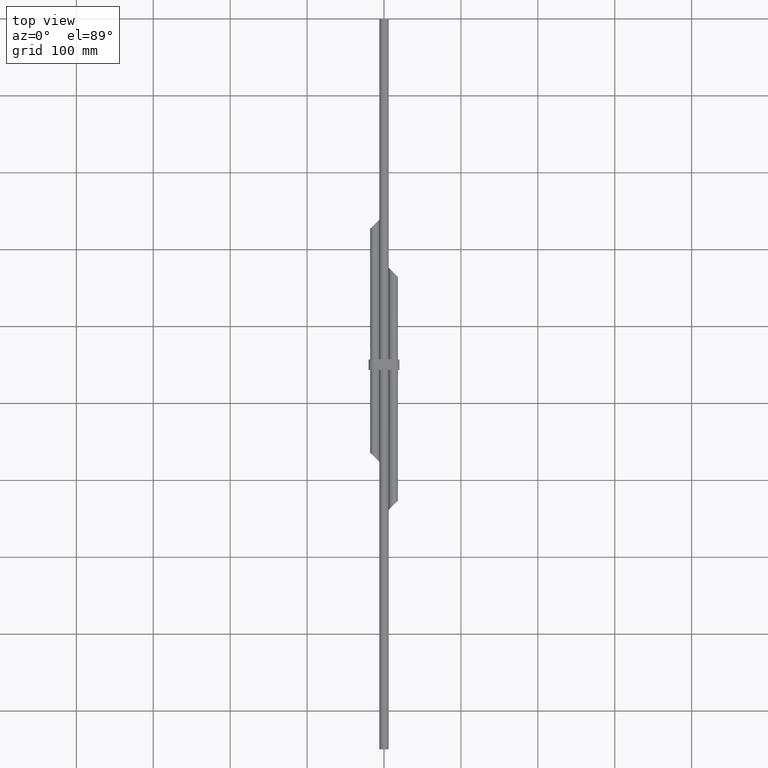
[diagram: clean part render]
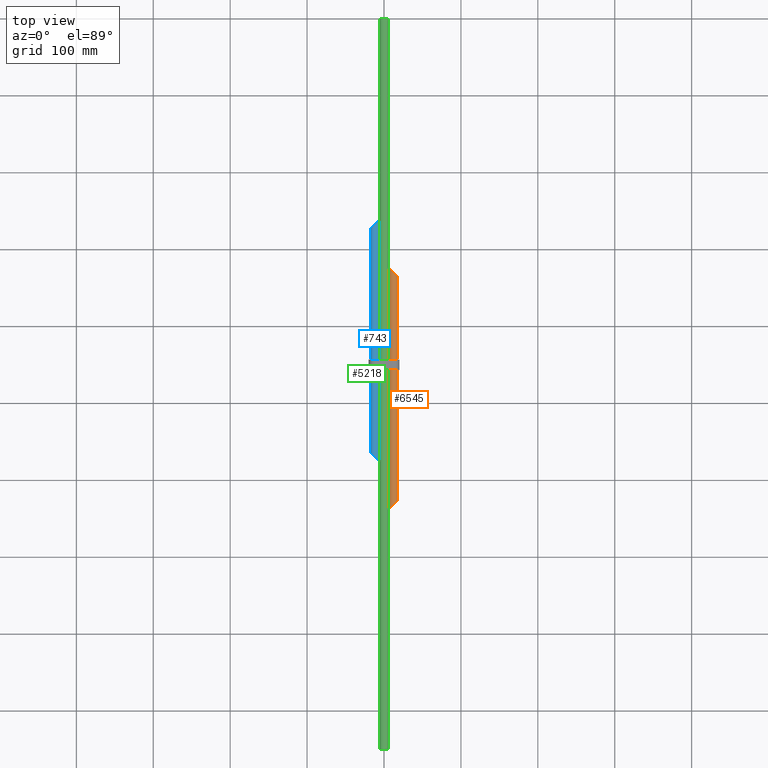
[diagram: same view with three faces highlighted in distinct colors, each labeled with its STEP entity id]
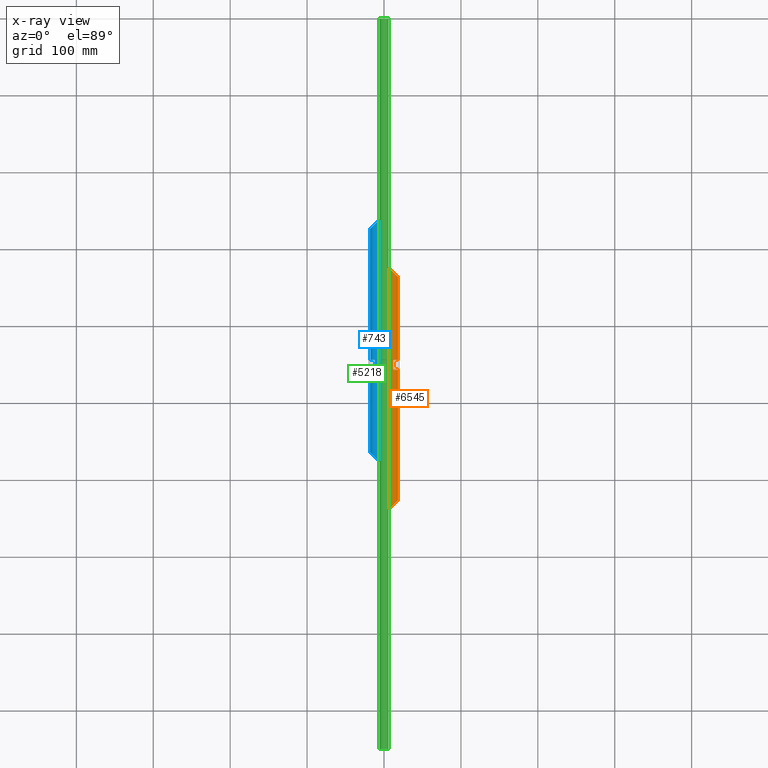
[diagram: x-ray of the same camera — body ghosted, the three highlighted faces saturated]
A machine part, top view with three faces highlighted in distinct colors.
The next image is the same camera in x-ray (body ghosted, the three faces saturated) — at least one of them is partly hidden behind the body in this view.
Their STEP definitions:

[orange] entity #6545 — the highlighted cylindrical surface (bore or boss wall) has radius 6 mm, axis along (-0, 1, -0).
#167 = ORIENTED_EDGE ( 'NONE', *, *, #13166, .T. ) ;
#826 = ORIENTED_EDGE ( 'NONE', *, *, #4181, .T. ) ;
#834 = VECTOR ( 'NONE', #4927, 1000.000000000000000 ) ;
#883 = ORIENTED_EDGE ( 'NONE', *, *, #9269, .F. ) ;
#1122 = CARTESIAN_POINT ( 'NONE',  ( 5.999999999999995559, -323.7500000000000568, 0.000000000000000000 ) ) ;
#1221 = AXIS2_PLACEMENT_3D ( 'NONE', #2932, #3956, #9436 ) ;
#1389 = DIRECTION ( 'NONE',  ( 0.000000000000000000, 1.000000000000000000, 0.000000000000000000 ) ) ;
#1483 = FACE_OUTER_BOUND ( 'NONE', #1789, .T. ) ;
#1734 = AXIS2_PLACEMENT_3D ( 'NONE', #11866, #4299, #7563 ) ;
#1789 = EDGE_LOOP ( 'NONE', ( #8839 ) ) ;
#1949 = AXIS2_PLACEMENT_3D ( 'NONE', #10737, #1389, #8793 ) ;
#2273 = VERTEX_POINT ( 'NONE', #13528 ) ;
#2278 = CARTESIAN_POINT ( 'NONE',  ( 5.999999999999995559, -638.7500000000000000, -7.347880794884122694E-16 ) ) ;
#2593 = EDGE_CURVE ( 'NONE', #4360, #11549, #10603, .T. ) ;
#2932 = CARTESIAN_POINT ( 'NONE',  ( 12.00000000000000000, -638.7500000000000000, 0.000000000000000000 ) ) ;
#3070 = VERTEX_POINT ( 'NONE', #10441 ) ;
#3158 = CARTESIAN_POINT ( 'NONE',  ( 5.999999999999993783, -638.7500000000000000, 12.00000000000000355 ) ) ;
#3192 = LINE ( 'NONE', #4068, #11327 ) ;
#3246 = CARTESIAN_POINT ( 'NONE',  ( 18.00000000000000711, -626.7500000000000000, -12.00000000000000355 ) ) ;
#3598 = VERTEX_POINT ( 'NONE', #12581 ) ;
#3655 = LINE ( 'NONE', #8136, #834 ) ;
#3956 = DIRECTION ( 'NONE',  ( -0.000000000000000000, 1.000000000000000000, -0.000000000000000000 ) ) ;
#4068 = CARTESIAN_POINT ( 'NONE',  ( 12.00000000000000000, -450.0000000000000000, -6.000000000000002665 ) ) ;
#4181 = EDGE_CURVE ( 'NONE', #4360, #11833, #3655, .T. ) ;
#4299 = DIRECTION ( 'NONE',  ( 0.000000000000000000, 1.000000000000000000, 0.000000000000000000 ) ) ;
#4360 = VERTEX_POINT ( 'NONE', #11387 ) ;
#4927 = DIRECTION ( 'NONE',  ( -0.000000000000000000, 1.000000000000000000, -0.000000000000000000 ) ) ;
#5428 = CARTESIAN_POINT ( 'NONE',  ( 18.00000000000000711, -626.7500000000000000, 0.000000000000000000 ) ) ;
#5452 = DIRECTION ( 'NONE',  ( -0.000000000000000000, 1.000000000000000000, -0.000000000000000000 ) ) ;
#5461 = CYLINDRICAL_SURFACE ( 'NONE', #1221, 6.000000000000002665 ) ;
#6224 = EDGE_CURVE ( 'NONE', #11833, #3070, #6793, .T. ) ;
#6454 = CARTESIAN_POINT ( 'NONE',  ( 18.00000000000000711, -626.7500000000000000, 0.000000000000000000 ) ) ;
#6508 = CARTESIAN_POINT ( 'NONE',  ( 5.999999999999995559, -323.7500000000000568, 0.000000000000000000 ) ) ;
#6545 = ADVANCED_FACE ( 'NONE', ( #1483, #9107, #12918 ), #5461, .T. ) ;
#6553 = CARTESIAN_POINT ( 'NONE',  ( 5.999999999999995559, -323.7500000000000568, 12.00000000000000355 ) ) ;
#6793 = CIRCLE ( 'NONE', #1949, 6.000000000000001776 ) ;
#7059 =( BOUNDED_CURVE ( )  B_SPLINE_CURVE ( 3, ( #6454, #3246, #7412, #2278, #3158, #9703, #5428 ),
 .UNSPECIFIED., .T., .F. ) 
 B_SPLINE_CURVE_WITH_KNOTS ( ( 4, 3, 4 ),
 ( 0.000000000000000000, 3.141592653589793116, 6.283185307179586232 ),
 .UNSPECIFIED. ) 
 CURVE ( )  GEOMETRIC_REPRESENTATION_ITEM ( )  RATIONAL_B_SPLINE_CURVE ( ( 1.000000000000000000, 0.3333333333333333703, 0.3333333333333333703, 1.000000000000000000, 0.3333333333333333703, 0.3333333333333333703, 1.000000000000000000 ) ) 
 REPRESENTATION_ITEM ( '' )  );
#7412 = CARTESIAN_POINT ( 'NONE',  ( 5.999999999999998224, -638.7500000000000000, -12.00000000000000355 ) ) ;
#7454 = CARTESIAN_POINT ( 'NONE',  ( 18.00000000000000711, -335.7500000000000568, 12.00000000000000355 ) ) ;
#7563 = DIRECTION ( 'NONE',  ( 0.000000000000000000, 0.000000000000000000, 1.000000000000000000 ) ) ;
#8136 = CARTESIAN_POINT ( 'NONE',  ( 12.00000000000000000, -450.0000000000000000, 6.000000000000000888 ) ) ;
#8793 = DIRECTION ( 'NONE',  ( 0.000000000000000000, 0.000000000000000000, 1.000000000000000000 ) ) ;
#8839 = ORIENTED_EDGE ( 'NONE', *, *, #10306, .T. ) ;
#9107 = FACE_OUTER_BOUND ( 'NONE', #10078, .T. ) ;
#9269 = EDGE_CURVE ( 'NONE', #11549, #3070, #3192, .T. ) ;
#9436 = DIRECTION ( 'NONE',  ( 0.000000000000000000, 0.000000000000000000, 1.000000000000000000 ) ) ;
#9703 = CARTESIAN_POINT ( 'NONE',  ( 18.00000000000000711, -626.7500000000000000, 12.00000000000000355 ) ) ;
#10078 = EDGE_LOOP ( 'NONE', ( #167 ) ) ;
#10306 = EDGE_CURVE ( 'NONE', #3598, #3598, #7059, .T. ) ;
#10357 = EDGE_LOOP ( 'NONE', ( #13508, #883, #13173, #826 ) ) ;
#10441 = CARTESIAN_POINT ( 'NONE',  ( 12.00000000000000000, -443.2500000000000568, -6.000000000000002665 ) ) ;
#10585 = CARTESIAN_POINT ( 'NONE',  ( 18.00000000000000711, -335.7500000000000568, -12.00000000000000355 ) ) ;
#10603 = CIRCLE ( 'NONE', #1734, 6.000000000000001776 ) ;
#10674 = CARTESIAN_POINT ( 'NONE',  ( 5.999999999999995559, -323.7500000000000568, -12.00000000000000355 ) ) ;
#10737 = CARTESIAN_POINT ( 'NONE',  ( 12.00000000000000000, -443.2500000000000568, 0.000000000000000000 ) ) ;
#10940 =( BOUNDED_CURVE ( )  B_SPLINE_CURVE ( 3, ( #1122, #10674, #10585, #11755, #7454, #6553, #6508 ),
 .UNSPECIFIED., .T., .F. ) 
 B_SPLINE_CURVE_WITH_KNOTS ( ( 4, 3, 4 ),
 ( 0.000000000000000000, 3.141592653589793116, 6.283185307179586232 ),
 .UNSPECIFIED. ) 
 CURVE ( )  GEOMETRIC_REPRESENTATION_ITEM ( )  RATIONAL_B_SPLINE_CURVE ( ( 1.000000000000000000, 0.3333333333333333703, 0.3333333333333333703, 1.000000000000000000, 0.3333333333333333703, 0.3333333333333333703, 1.000000000000000000 ) ) 
 REPRESENTATION_ITEM ( '' )  );
#11327 = VECTOR ( 'NONE', #5452, 1000.000000000000000 ) ;
#11387 = CARTESIAN_POINT ( 'NONE',  ( 12.00000000000000000, -456.7500000000000000, 6.000000000000000888 ) ) ;
#11549 = VERTEX_POINT ( 'NONE', #13537 ) ;
#11755 = CARTESIAN_POINT ( 'NONE',  ( 18.00000000000000711, -335.7500000000000568, -7.347880794884122694E-16 ) ) ;
#11833 = VERTEX_POINT ( 'NONE', #12856 ) ;
#11866 = CARTESIAN_POINT ( 'NONE',  ( 12.00000000000000000, -456.7500000000000000, 0.000000000000000000 ) ) ;
#12581 = CARTESIAN_POINT ( 'NONE',  ( 18.00000000000000711, -626.7500000000000000, 0.000000000000000000 ) ) ;
#12856 = CARTESIAN_POINT ( 'NONE',  ( 12.00000000000000000, -443.2500000000000568, 6.000000000000001776 ) ) ;
#12918 = FACE_BOUND ( 'NONE', #10357, .T. ) ;
#13166 = EDGE_CURVE ( 'NONE', #2273, #2273, #10940, .T. ) ;
#13173 = ORIENTED_EDGE ( 'NONE', *, *, #2593, .F. ) ;
#13508 = ORIENTED_EDGE ( 'NONE', *, *, #6224, .T. ) ;
#13528 = CARTESIAN_POINT ( 'NONE',  ( 5.999999999999995559, -323.7500000000000568, 0.000000000000000000 ) ) ;
#13537 = CARTESIAN_POINT ( 'NONE',  ( 12.00000000000000000, -456.7500000000000000, -6.000000000000001776 ) ) ;

[blue] entity #743 — the highlighted cylindrical surface (bore or boss wall) has radius 6 mm, axis along (-0, 1, -0).
#30 = CARTESIAN_POINT ( 'NONE',  ( -12.00000000000000000, -443.2500000000000568, 6.000000000000000888 ) ) ;
#268 = VERTEX_POINT ( 'NONE', #9240 ) ;
#519 = DIRECTION ( 'NONE',  ( -0.000000000000000000, 1.000000000000000000, -0.000000000000000000 ) ) ;
#743 = ADVANCED_FACE ( 'NONE', ( #9638, #1847, #11800 ), #8799, .T. ) ;
#829 =( BOUNDED_CURVE ( )  B_SPLINE_CURVE ( 3, ( #6157, #11586, #13745, #12654, #10464, #7390, #10519 ),
 .UNSPECIFIED., .T., .T. ) 
 B_SPLINE_CURVE_WITH_KNOTS ( ( 4, 3, 4 ),
 ( 0.000000000000000000, 3.141592653589793116, 6.283185307179586232 ),
 .UNSPECIFIED. ) 
 CURVE ( )  GEOMETRIC_REPRESENTATION_ITEM ( )  RATIONAL_B_SPLINE_CURVE ( ( 1.000000000000000000, 0.3333333333333333703, 0.3333333333333333703, 1.000000000000000000, 0.3333333333333333703, 0.3333333333333333703, 1.000000000000000000 ) ) 
 REPRESENTATION_ITEM ( '' )  );
#1103 = ORIENTED_EDGE ( 'NONE', *, *, #1729, .F. ) ;
#1514 = ORIENTED_EDGE ( 'NONE', *, *, #4558, .F. ) ;
#1640 = CARTESIAN_POINT ( 'NONE',  ( -18.00000000000000000, -273.2500000000000568, -12.00000000000000178 ) ) ;
#1729 = EDGE_CURVE ( 'NONE', #2446, #12722, #10613, .T. ) ;
#1847 = FACE_OUTER_BOUND ( 'NONE', #4980, .T. ) ;
#2263 = AXIS2_PLACEMENT_3D ( 'NONE', #4930, #10368, #5080 ) ;
#2379 = CARTESIAN_POINT ( 'NONE',  ( -12.00000000000000000, -456.7500000000000000, 0.000000000000000000 ) ) ;
#2446 = VERTEX_POINT ( 'NONE', #7058 ) ;
#2712 = CARTESIAN_POINT ( 'NONE',  ( -5.999999999999998224, -261.2500000000000568, -12.00000000000000178 ) ) ;
#3071 = CARTESIAN_POINT ( 'NONE',  ( -5.999999999999998224, -261.2500000000000568, 0.000000000000000000 ) ) ;
#4408 = VERTEX_POINT ( 'NONE', #12438 ) ;
#4409 = DIRECTION ( 'NONE',  ( 0.000000000000000000, 0.000000000000000000, 1.000000000000000000 ) ) ;
#4558 = EDGE_CURVE ( 'NONE', #4408, #2446, #9491, .T. ) ;
#4767 = VECTOR ( 'NONE', #519, 1000.000000000000000 ) ;
#4787 = CARTESIAN_POINT ( 'NONE',  ( -5.999999999999998224, -261.2500000000000568, 0.000000000000000000 ) ) ;
#4920 = CARTESIAN_POINT ( 'NONE',  ( -18.00000000000000355, -273.2500000000000568, 7.347880794884120722E-16 ) ) ;
#4930 = CARTESIAN_POINT ( 'NONE',  ( -12.00000000000000000, -576.2500000000000000, 0.000000000000000000 ) ) ;
#4980 = EDGE_LOOP ( 'NONE', ( #7413 ) ) ;
#5080 = DIRECTION ( 'NONE',  ( 0.000000000000000000, 0.000000000000000000, 1.000000000000000000 ) ) ;
#5190 =( BOUNDED_CURVE ( )  B_SPLINE_CURVE ( 3, ( #9044, #11343, #8130, #4920, #1640, #2712, #4787 ),
 .UNSPECIFIED., .T., .F. ) 
 B_SPLINE_CURVE_WITH_KNOTS ( ( 4, 3, 4 ),
 ( 0.000000000000000000, 3.141592653589793116, 6.283185307179586232 ),
 .UNSPECIFIED. ) 
 CURVE ( )  GEOMETRIC_REPRESENTATION_ITEM ( )  RATIONAL_B_SPLINE_CURVE ( ( 1.000000000000000000, 0.3333333333333333703, 0.3333333333333333703, 1.000000000000000000, 0.3333333333333333703, 0.3333333333333333703, 1.000000000000000000 ) ) 
 REPRESENTATION_ITEM ( '' )  );
#5926 = DIRECTION ( 'NONE',  ( 0.000000000000000000, 0.000000000000000000, 1.000000000000000000 ) ) ;
#6157 = CARTESIAN_POINT ( 'NONE',  ( -18.00000000000000355, -564.2500000000000000, 0.000000000000000000 ) ) ;
#6371 = EDGE_LOOP ( 'NONE', ( #10967, #10301, #1103, #1514 ) ) ;
#6611 = EDGE_LOOP ( 'NONE', ( #8461 ) ) ;
#6766 = LINE ( 'NONE', #10168, #4767 ) ;
#7048 = VERTEX_POINT ( 'NONE', #10704 ) ;
#7058 = CARTESIAN_POINT ( 'NONE',  ( -12.00000000000000178, -456.7500000000000000, 6.000000000000001776 ) ) ;
#7390 = CARTESIAN_POINT ( 'NONE',  ( -18.00000000000000000, -564.2499999999998863, -12.00000000000000178 ) ) ;
#7413 = ORIENTED_EDGE ( 'NONE', *, *, #9117, .T. ) ;
#8029 = EDGE_CURVE ( 'NONE', #10715, #10715, #5190, .T. ) ;
#8130 = CARTESIAN_POINT ( 'NONE',  ( -18.00000000000000000, -273.2500000000000568, 12.00000000000000178 ) ) ;
#8461 = ORIENTED_EDGE ( 'NONE', *, *, #8029, .T. ) ;
#8799 = CYLINDRICAL_SURFACE ( 'NONE', #2263, 6.000000000000000888 ) ;
#9044 = CARTESIAN_POINT ( 'NONE',  ( -5.999999999999998224, -261.2500000000000568, 0.000000000000000000 ) ) ;
#9117 = EDGE_CURVE ( 'NONE', #268, #268, #829, .T. ) ;
#9240 = CARTESIAN_POINT ( 'NONE',  ( -18.00000000000000355, -564.2500000000000000, 0.000000000000000000 ) ) ;
#9491 = CIRCLE ( 'NONE', #12049, 6.000000000000001776 ) ;
#9638 = FACE_OUTER_BOUND ( 'NONE', #6611, .T. ) ;
#10168 = CARTESIAN_POINT ( 'NONE',  ( -12.00000000000000000, -450.0000000000000000, -6.000000000000002665 ) ) ;
#10213 = AXIS2_PLACEMENT_3D ( 'NONE', #13410, #13512, #5926 ) ;
#10301 = ORIENTED_EDGE ( 'NONE', *, *, #10555, .T. ) ;
#10368 = DIRECTION ( 'NONE',  ( -0.000000000000000000, 1.000000000000000000, -0.000000000000000000 ) ) ;
#10464 = CARTESIAN_POINT ( 'NONE',  ( -5.999999999999996447, -576.2499999999998863, -12.00000000000000178 ) ) ;
#10519 = CARTESIAN_POINT ( 'NONE',  ( -18.00000000000000355, -564.2500000000000000, 0.000000000000000000 ) ) ;
#10555 = EDGE_CURVE ( 'NONE', #7048, #12722, #10950, .T. ) ;
#10613 = LINE ( 'NONE', #11124, #13761 ) ;
#10704 = CARTESIAN_POINT ( 'NONE',  ( -12.00000000000000000, -443.2500000000000568, -6.000000000000001776 ) ) ;
#10715 = VERTEX_POINT ( 'NONE', #3071 ) ;
#10950 = CIRCLE ( 'NONE', #10213, 6.000000000000001776 ) ;
#10967 = ORIENTED_EDGE ( 'NONE', *, *, #13686, .T. ) ;
#10992 = DIRECTION ( 'NONE',  ( -0.000000000000000000, 1.000000000000000000, -0.000000000000000000 ) ) ;
#11124 = CARTESIAN_POINT ( 'NONE',  ( -12.00000000000000000, -450.0000000000000000, 6.000000000000001776 ) ) ;
#11343 = CARTESIAN_POINT ( 'NONE',  ( -5.999999999999998224, -261.2500000000000568, 12.00000000000000178 ) ) ;
#11586 = CARTESIAN_POINT ( 'NONE',  ( -18.00000000000000000, -564.2499999999998863, 12.00000000000000178 ) ) ;
#11800 = FACE_BOUND ( 'NONE', #6371, .T. ) ;
#11884 = DIRECTION ( 'NONE',  ( 0.000000000000000000, 1.000000000000000000, 0.000000000000000000 ) ) ;
#12049 = AXIS2_PLACEMENT_3D ( 'NONE', #2379, #11884, #4409 ) ;
#12438 = CARTESIAN_POINT ( 'NONE',  ( -12.00000000000000000, -456.7500000000000000, -6.000000000000000888 ) ) ;
#12654 = CARTESIAN_POINT ( 'NONE',  ( -5.999999999999998224, -576.2500000000000000, 7.347880794884120722E-16 ) ) ;
#12722 = VERTEX_POINT ( 'NONE', #30 ) ;
#13410 = CARTESIAN_POINT ( 'NONE',  ( -12.00000000000000000, -443.2500000000000568, 0.000000000000000000 ) ) ;
#13512 = DIRECTION ( 'NONE',  ( 0.000000000000000000, 1.000000000000000000, 0.000000000000000000 ) ) ;
#13686 = EDGE_CURVE ( 'NONE', #4408, #7048, #6766, .T. ) ;
#13745 = CARTESIAN_POINT ( 'NONE',  ( -6.000000000000000888, -576.2499999999998863, 12.00000000000000178 ) ) ;
#13761 = VECTOR ( 'NONE', #10992, 1000.000000000000000 ) ;

[green] entity #5218 — the highlighted cylindrical surface (bore or boss wall) has radius 6 mm, axis along (0, 1, 0).
#31 = EDGE_LOOP ( 'NONE', ( #4264 ) ) ;
#1516 = CYLINDRICAL_SURFACE ( 'NONE', #6092, 6.000000000000000888 ) ;
#1882 = CARTESIAN_POINT ( 'NONE',  ( 0.000000000000000000, -950.0000000000000000, 6.000000000000000888 ) ) ;
#2059 = DIRECTION ( 'NONE',  ( 0.000000000000000000, 0.000000000000000000, 1.000000000000000000 ) ) ;
#2191 = DIRECTION ( 'NONE',  ( 0.000000000000000000, 1.000000000000000000, 0.000000000000000000 ) ) ;
#3240 = DIRECTION ( 'NONE',  ( 0.000000000000000000, 0.000000000000000000, 1.000000000000000000 ) ) ;
#3694 = EDGE_LOOP ( 'NONE', ( #12937 ) ) ;
#4164 = FACE_OUTER_BOUND ( 'NONE', #3694, .T. ) ;
#4264 = ORIENTED_EDGE ( 'NONE', *, *, #6142, .F. ) ;
#4365 = DIRECTION ( 'NONE',  ( 0.000000000000000000, 1.000000000000000000, 0.000000000000000000 ) ) ;
#5218 = ADVANCED_FACE ( 'NONE', ( #4164, #7176 ), #1516, .T. ) ;
#5330 = EDGE_CURVE ( 'NONE', #7919, #7919, #12441, .T. ) ;
#6044 = CARTESIAN_POINT ( 'NONE',  ( 0.000000000000000000, 0.000000000000000000, 6.000000000000000888 ) ) ;
#6092 = AXIS2_PLACEMENT_3D ( 'NONE', #12750, #9559, #2059 ) ;
#6142 = EDGE_CURVE ( 'NONE', #13048, #13048, #11447, .T. ) ;
#7176 = FACE_OUTER_BOUND ( 'NONE', #31, .T. ) ;
#7919 = VERTEX_POINT ( 'NONE', #1882 ) ;
#9559 = DIRECTION ( 'NONE',  ( 0.000000000000000000, 1.000000000000000000, 0.000000000000000000 ) ) ;
#9644 = DIRECTION ( 'NONE',  ( 0.000000000000000000, 0.000000000000000000, 1.000000000000000000 ) ) ;
#11447 = CIRCLE ( 'NONE', #13549, 6.000000000000000888 ) ;
#11784 = CARTESIAN_POINT ( 'NONE',  ( 0.000000000000000000, -950.0000000000000000, 0.000000000000000000 ) ) ;
#12441 = CIRCLE ( 'NONE', #12691, 6.000000000000000888 ) ;
#12691 = AXIS2_PLACEMENT_3D ( 'NONE', #11784, #2191, #9644 ) ;
#12750 = CARTESIAN_POINT ( 'NONE',  ( 0.000000000000000000, -950.0000000000000000, 0.000000000000000000 ) ) ;
#12937 = ORIENTED_EDGE ( 'NONE', *, *, #5330, .T. ) ;
#13048 = VERTEX_POINT ( 'NONE', #6044 ) ;
#13549 = AXIS2_PLACEMENT_3D ( 'NONE', #13711, #4365, #3240 ) ;
#13711 = CARTESIAN_POINT ( 'NONE',  ( 0.000000000000000000, 0.000000000000000000, 0.000000000000000000 ) ) ;